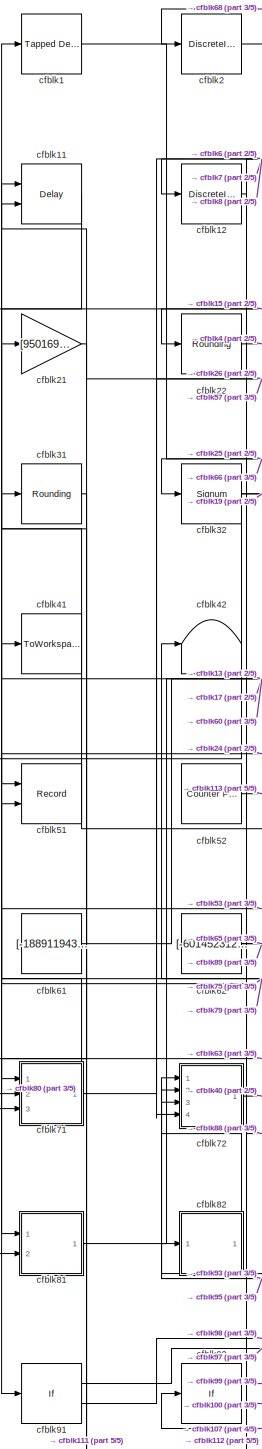
[diagram: root canvas - part 1/5, left side, full height]
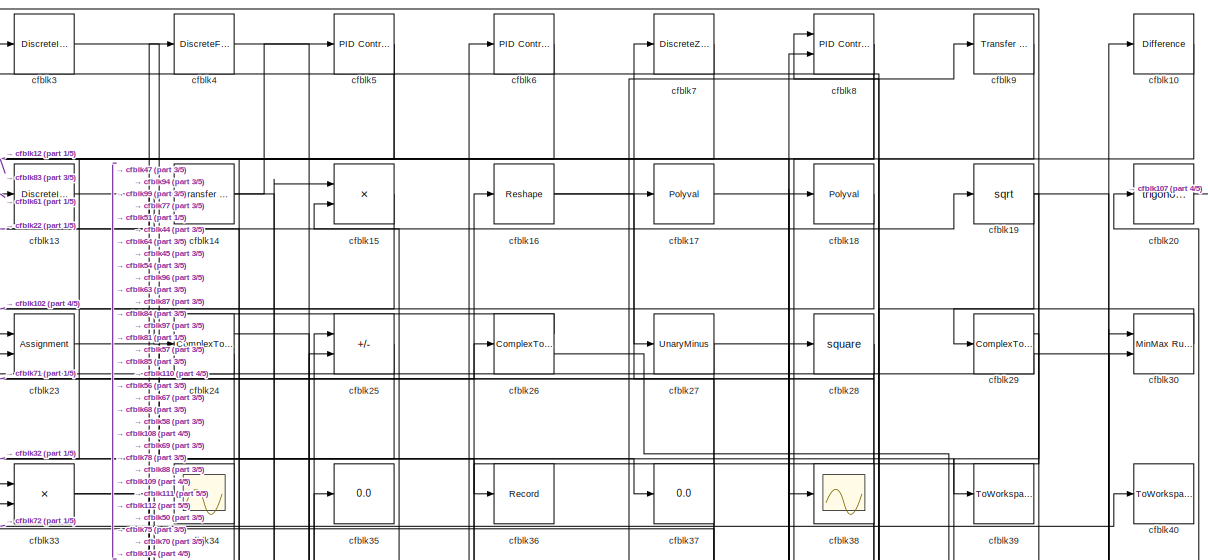
[diagram: root canvas - part 2/5, full width, top band]
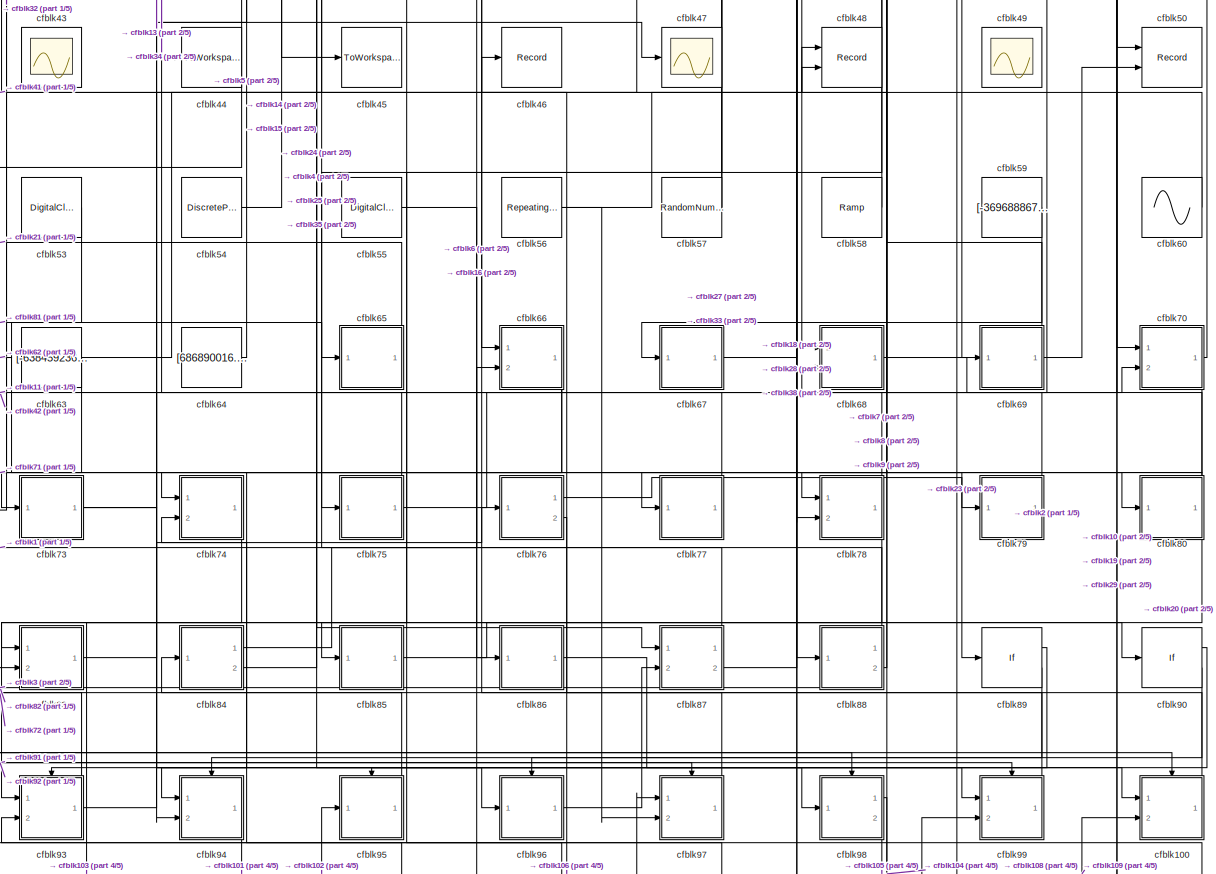
[diagram: root canvas - part 3/5, full width, middle band]
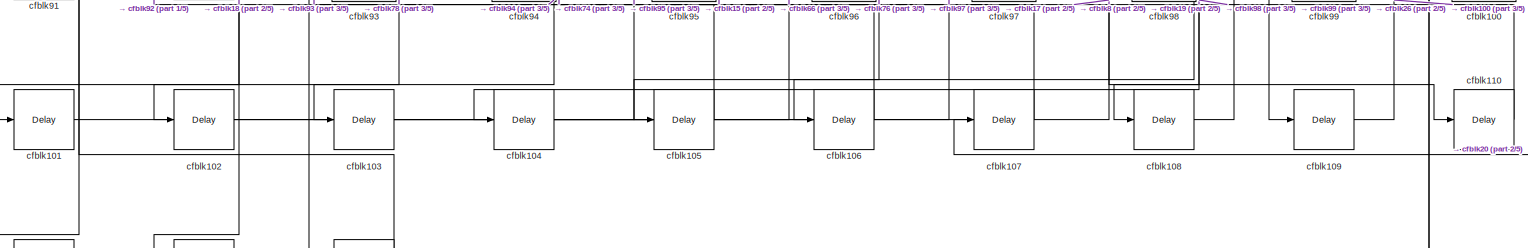
[diagram: root canvas - part 4/5, full width, bottom band]
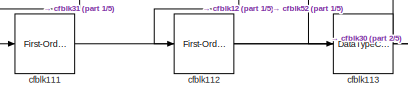
[diagram: root canvas - part 5/5, bottom left region]
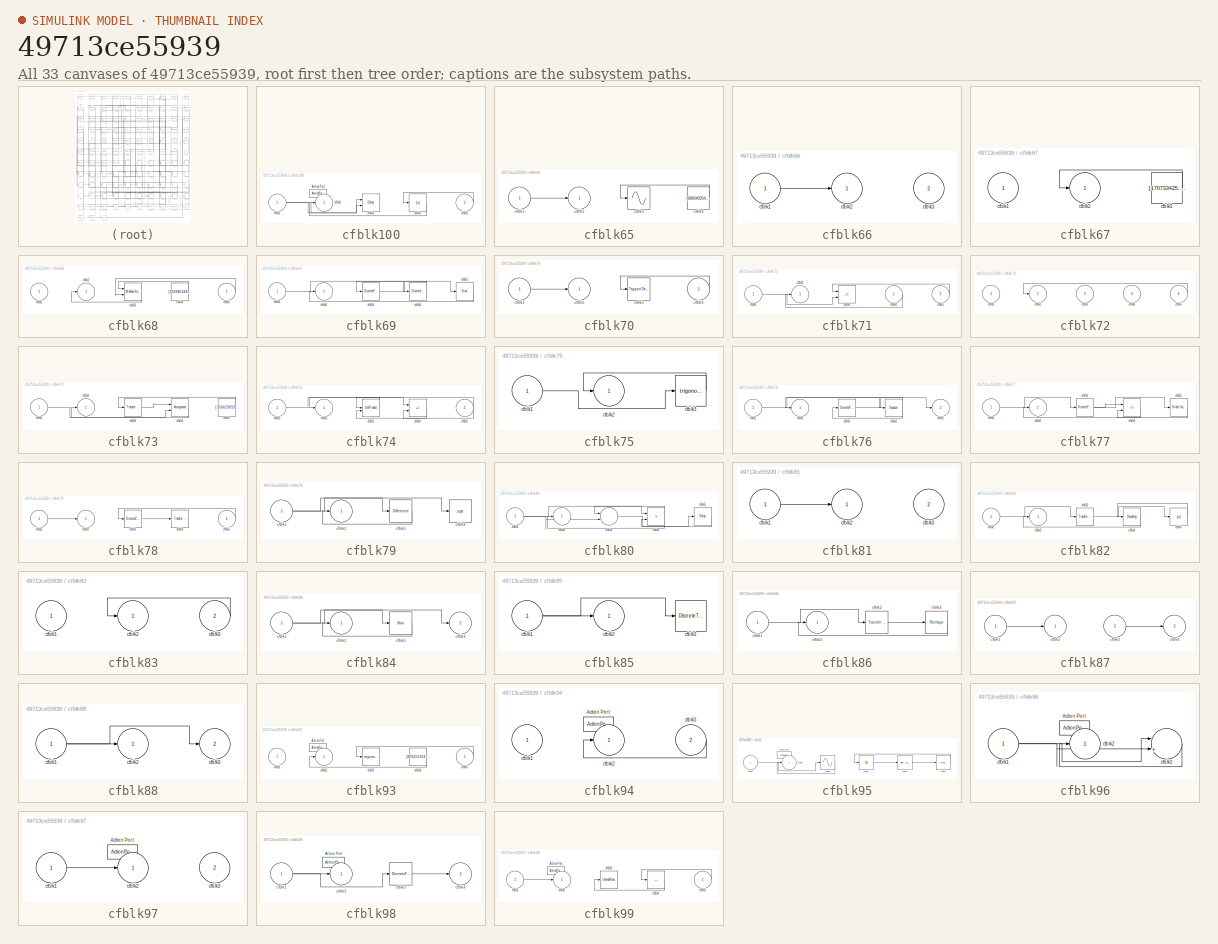
[diagram: thumbnail index - all 33 canvases of the model, root first then tree order]
MODEL slx_49713ce55939
KIND model
CONFIG AbsTol = auto
CONFIG EnableMultiTasking = off
CONFIG FixedStep = auto
CONFIG MaxStep = auto
CONFIG MinStep = auto
CONFIG RelTol = 1e-3
CONFIG SampleTimeConstraint = Unconstrained
CONFIG SolverName = VariableStepAuto
CONFIG StartTime = 0.0
CONFIG StopTime = 10.0
BLOCK [Reference] cfblk1  REF=simulink/Discrete/Tapped Delay
  Ports = [1, 1]
  SourceBlock = simulink/Discrete/Tapped Delay
  SourceProductBaseCode = SL
  SourceType = Tapped Delay Line
BLOCK [Reference] cfblk10  REF=simulink/Discrete/Difference
  Ports = [1, 1]
  SourceBlock = simulink/Discrete/Difference
  SourceProductBaseCode = SL
  SourceType = Difference
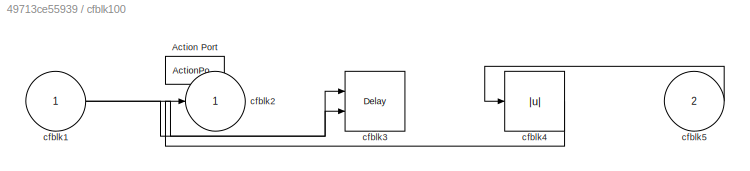
BLOCK [SubSystem] cfblk100
  Ports = [2, 1, 0, 0, 0, 0, 0, 1]
  RequestExecContextInheritance = off
  TreatAsAtomicUnit = on
BLOCK [ActionPort] cfblk100/Action Port
  ActionPortLabel = else
BLOCK [Inport] cfblk100/cfblk1
BLOCK [Outport] cfblk100/cfblk2
BLOCK [Delay] cfblk100/cfblk3
  InputPortMap = u0,e6
  Ports = [2, 1]
  ShowEnablePort = on
BLOCK [Abs] cfblk100/cfblk4
  SaturateOnIntegerOverflow = off
BLOCK [Inport] cfblk100/cfblk5
  Port = 2
BLOCK [Delay] cfblk101
  InputPortMap = u0
  Ports = [1, 1]
  SampleTime = 1
BLOCK [Delay] cfblk102
  InputPortMap = u0
  Ports = [1, 1]
  SampleTime = 1
BLOCK [Delay] cfblk103
  InputPortMap = u0
  Ports = [1, 1]
  SampleTime = 1
BLOCK [Delay] cfblk104
  InputPortMap = u0
  Ports = [1, 1]
  SampleTime = 1
BLOCK [Delay] cfblk105
  InputPortMap = u0
  Ports = [1, 1]
  SampleTime = 1
BLOCK [Delay] cfblk106
  InputPortMap = u0
  Ports = [1, 1]
  SampleTime = 1
BLOCK [Delay] cfblk107
  InputPortMap = u0
  Ports = [1, 1]
  SampleTime = 1
BLOCK [Delay] cfblk108
  InputPortMap = u0
  Ports = [1, 1]
  SampleTime = 1
BLOCK [Delay] cfblk109
  InputPortMap = u0
  Ports = [1, 1]
  SampleTime = 1
BLOCK [Delay] cfblk11
  DelayLengthSource = Input port
  InputPortMap = u0,p1
  Ports = [2, 1]
  SampleTime = 1
BLOCK [Delay] cfblk110
  InputPortMap = u0
  Ports = [1, 1]
  SampleTime = 1
BLOCK [Reference] cfblk111  REF=simulink_need_slupdate/First-Order
Hold
  DisableCoverage = on
  Ports = [1, 1]
  SourceBlock = simulink_need_slupdate/First-Order\nHold
  SourceProductBaseCode = SL
  SourceType = First-Order Hold
BLOCK [Reference] cfblk112  REF=simulink_need_slupdate/First-Order
Hold
  DisableCoverage = on
  Ports = [1, 1]
  SourceBlock = simulink_need_slupdate/First-Order\nHold
  SourceProductBaseCode = SL
  SourceType = First-Order Hold
BLOCK [DataTypeConversion] cfblk113
  RndMeth = Floor
  SaturateOnIntegerOverflow = off
BLOCK [DiscreteIntegrator] cfblk12
  ICPrevOutput = DiscIntNeverNeededParam
  ICPrevScaledInput = DiscIntNeverNeededParam
  InitialConditionSetting = Auto
  Ports = [1, 1]
BLOCK [DiscreteIntegrator] cfblk13
  ICPrevOutput = DiscIntNeverNeededParam
  ICPrevScaledInput = DiscIntNeverNeededParam
  InitialConditionSetting = Auto
  Ports = [1, 1]
BLOCK [Reference] cfblk14  REF=simulink/Discrete/Transfer Fcn
First Order
  Ports = [1, 1]
  SourceBlock = simulink/Discrete/Transfer Fcn\nFirst Order
  SourceProductBaseCode = SL
  SourceType = First Order Transfer Fcn
BLOCK [Product] cfblk15
  Inputs = **
  Ports = [2, 1]
BLOCK [Reshape] cfblk16
  Ports = [1, 1]
BLOCK [Polyval] cfblk17
  Coefs = [ +2.081618890e-019, -1.441693666e-014, +4.719686976e-010, -8.536869453e-006, +1.621573104e-001, -8.087801117e+001 ]
BLOCK [Polyval] cfblk18
  Coefs = [ +2.081618890e-019, -1.441693666e-014, +4.719686976e-010, -8.536869453e-006, +1.621573104e-001, -8.087801117e+001 ]
BLOCK [Sqrt] cfblk19
BLOCK [DiscreteIntegrator] cfblk2
  ICPrevOutput = DiscIntNeverNeededParam
  ICPrevScaledInput = DiscIntNeverNeededParam
  InitialConditionSetting = Auto
  Ports = [1, 1]
BLOCK [Trigonometry] cfblk20
  Ports = [1, 1]
BLOCK [Gain] cfblk21
  Gain = [950169785.692510]
BLOCK [Rounding] cfblk22
BLOCK [Assignment] cfblk23
  DiagnosticForDimensions = Warning
  IndexOptions = Index vector (dialog)
  Indices = 1
  OutputSizes = 1
  Ports = [2, 1]
BLOCK [ComplexToMagnitudeAngle] cfblk24
  Ports = [1, 2]
BLOCK [Sum] cfblk25
  IconShape = rectangular
  Inputs = +-
  Ports = [2, 1]
BLOCK [ComplexToMagnitudeAngle] cfblk26
  Ports = [1, 2]
BLOCK [UnaryMinus] cfblk27
BLOCK [Math] cfblk28
  Operator = square
  Ports = [1, 1]
BLOCK [ComplexToMagnitudeAngle] cfblk29
  Ports = [1, 2]
BLOCK [DiscreteIntegrator] cfblk3
  ICPrevOutput = DiscIntNeverNeededParam
  ICPrevScaledInput = DiscIntNeverNeededParam
  InitialConditionSetting = Auto
  Ports = [1, 1]
BLOCK [Reference] cfblk30  REF=simulink/Math
Operations/MinMax
Running
Resettable
  Ports = [2, 1]
  SourceBlock = simulink/Math\nOperations/MinMax\nRunning\nResettable
  SourceProductBaseCode = SL
  SourceType = MinMax Running Resettable
BLOCK [Rounding] cfblk31
BLOCK [Signum] cfblk32
BLOCK [Product] cfblk33
  Inputs = **
  Ports = [2, 1]
BLOCK [Scope] cfblk34
  Floating = off
  NumInputPorts = 1
  Ports = [1]
BLOCK [Display] cfblk35
  Decimation = 1
  Ports = [1]
BLOCK [Record] cfblk36
  FileSettingsInternal = {"entries":[{"content":{"excelSettings":{"content":{},"type":"Streamout.ExcelSettings"}},"type":"Streamout.FileSettingStorage","uuid":"ec53506d-30ea-4261-b9a0-b75c484f34c6"}],"packageUris":["http://schema.mathworks.com/mf0/streamout_blocks/R2020a"],"version":"1.0"}
  Ports = [1]
  SignalsInternal = {"entries":[{"content":{"signals":[{"content":{"blockPath":["sampleModel167/cfblk36"],"channel":[],"dimensions":[1],"domain":"sampleModel167/cfblk36","lineColor":"#0072bd","plots":[1],"port":1,"sid":[""],"signalID":6249,"signalName":"cfblk29:1"},"type":"RecordBlkView.Signal","uuid":"139c6468-dbd3-450a-91ea-6cefff8656e1"}]},"type":"RecordBlkView.InputSignals","uuid":"052d45fd-bfd9-46ee-adba-506bdda...<+99ch>
  VisualizationBindings = {"sparklinesplugin":{"info":[{"bindingParametersList":[],"subplotID":1}]}}
BLOCK [Display] cfblk37
  Decimation = 1
  Ports = [1]
BLOCK [Scope] cfblk38
  Floating = off
  NumInputPorts = 1
  Ports = [1]
BLOCK [ToWorkspace] cfblk39
  FixptAsFi = on
  MaxDataPoints = inf
  Ports = [1]
  SampleTime = -1
  SaveFormat = Timeseries
  VariableName = jrjdnlb
BLOCK [DiscreteFilter] cfblk4
  InputPortMap = u0
  Ports = [1, 1]
  SampleTime = 1
BLOCK [ToWorkspace] cfblk40
  FixptAsFi = on
  MaxDataPoints = inf
  Ports = [1]
  SampleTime = -1
  SaveFormat = Timeseries
  VariableName = kweqstz
BLOCK [ToWorkspace] cfblk41
  FixptAsFi = on
  MaxDataPoints = inf
  Ports = [1]
  SampleTime = -1
  SaveFormat = Timeseries
  VariableName = vjsuthl
BLOCK [Terminator] cfblk42
BLOCK [Scope] cfblk43
  Floating = on
  NumInputPorts = 1
  Ports = []
BLOCK [ToWorkspace] cfblk44
  FixptAsFi = on
  MaxDataPoints = inf
  Ports = [1]
  SampleTime = -1
  SaveFormat = Timeseries
  VariableName = tsogrfv
BLOCK [ToWorkspace] cfblk45
  FixptAsFi = on
  MaxDataPoints = inf
  Ports = [1]
  SampleTime = -1
  SaveFormat = Timeseries
  VariableName = mblcdwz
BLOCK [Record] cfblk46
  FileSettingsInternal = {"entries":[{"content":{"excelSettings":{"content":{},"type":"Streamout.ExcelSettings"}},"type":"Streamout.FileSettingStorage","uuid":"da6e1204-091f-4c4c-badc-bc2d25b8ce37"}],"packageUris":["http://schema.mathworks.com/mf0/streamout_blocks/R2020a"],"version":"1.0"}
  Ports = [1]
  SignalsInternal = {"entries":[{"content":{"signals":[{"content":{"blockPath":["sampleModel167/cfblk46"],"channel":[],"dimensions":[1],"domain":"sampleModel167/cfblk46","lineColor":"#d95319","plots":[1],"port":1,"sid":[""],"signalID":6253,"signalName":"cfblk100"},"type":"RecordBlkView.Signal","uuid":"8a354596-a8b4-422e-ad70-63d130796eff"}]},"type":"RecordBlkView.InputSignals","uuid":"d4f8df1c-8773-4cbd-9373-b1e680f8...<+98ch>
  VisualizationBindings = {"sparklinesplugin":{"info":[{"bindingParametersList":[],"subplotID":1}]}}
BLOCK [Scope] cfblk47
  Floating = off
  NumInputPorts = 1
  Ports = [1]
BLOCK [Record] cfblk48
  CompatibilityTag = XY
  FileSettingsInternal = {"entries":[{"content":{"excelSettings":{"content":{},"type":"Streamout.ExcelSettings"}},"type":"Streamout.FileSettingStorage","uuid":"2d2570bb-5f7a-4484-a74c-e022182345ca"}],"packageUris":["http://schema.mathworks.com/mf0/streamout_blocks/R2020a"],"version":"1.0"}
  Layout = [1 1]
  Ports = [2]
  SignalsInternal = {"entries":[{"content":{"signals":[{"content":{"blockPath":["sampleModel167/cfblk48"],"channel":[],"dimensions":[1],"domain":"sampleModel167/cfblk48","lineColor":"#a2142f","plots":[1],"port":1,"sid":[""],"signalID":6257,"signalName":"cfblk80"},"type":"RecordBlkView.Signal","uuid":"0f420bdd-d17e-44a9-89a2-4def85ddcdf1"},{"content":{"blockPath":["sampleModel167/cfblk48"],"channel":[],"dimensions":[1...<+383ch>
  VisualizationBindings = {"xyplotplugin":{"info":[{"series":[{"bindingParametersList":[{"parameter":"X-Axis","signalID":6257,"signalName":"cfblk80"},{"parameter":"Y-Axis","signalID":6261,"signalName":"cfblk73"}],"seriesID":53970}],"subplotID":1}]}}
BLOCK [Scope] cfblk49
  Floating = on
  NumInputPorts = 1
  Ports = []
BLOCK [Reference] cfblk5  REF=slpidlib/PID Controller
  Ports = [1, 1]
  SourceBlock = slpidlib/PID Controller
  SourceProductBaseCode = SL
  SourceType = PID 1dof
BLOCK [Record] cfblk50
  CompatibilityTag = XY
  FileSettingsInternal = {"entries":[{"content":{"excelSettings":{"content":{},"type":"Streamout.ExcelSettings"}},"type":"Streamout.FileSettingStorage","uuid":"40a77355-b6b9-4623-865c-1ca23200a22d"}],"packageUris":["http://schema.mathworks.com/mf0/streamout_blocks/R2020a"],"version":"1.0"}
  Layout = [1 1]
  Ports = [2]
  SignalsInternal = {"entries":[{"content":{"signals":[{"content":{"blockPath":["sampleModel167/cfblk50"],"channel":[],"dimensions":[1],"domain":"sampleModel167/cfblk50","lineColor":"#a2142f","plots":[1],"port":1,"sid":[""],"signalID":6265,"signalName":"cfblk29:2"},"type":"RecordBlkView.Signal","uuid":"cc7a997b-e63d-444a-905f-d59d5b2896fd"},{"content":{"blockPath":["sampleModel167/cfblk50"],"channel":[],"dimensions":...<+385ch>
  VisualizationBindings = {"xyplotplugin":{"info":[{"series":[{"bindingParametersList":[{"parameter":"X-Axis","signalID":6265,"signalName":"cfblk29:2"},{"parameter":"Y-Axis","signalID":6269,"signalName":"cfblk69"}],"seriesID":27313}],"subplotID":1}]}}
BLOCK [Record] cfblk51
  CompatibilityTag = XY
  FileSettingsInternal = {"entries":[{"content":{"excelSettings":{"content":{},"type":"Streamout.ExcelSettings"}},"type":"Streamout.FileSettingStorage","uuid":"e3204bcf-3174-4af1-beb2-6810d04cfba5"}],"packageUris":["http://schema.mathworks.com/mf0/streamout_blocks/R2020a"],"version":"1.0"}
  Layout = [1 1]
  Ports = [2]
  SignalsInternal = {"entries":[{"content":{"signals":[{"content":{"blockPath":["sampleModel167/cfblk51"],"channel":[],"dimensions":[1],"domain":"sampleModel167/cfblk51","lineColor":"#a2142f","plots":[1],"port":1,"sid":[""],"signalID":6273,"signalName":"cfblk24:2"},"type":"RecordBlkView.Signal","uuid":"6600f92a-317f-4508-8dc5-cdf654def4ef"},{"content":{"blockPath":["sampleModel167/cfblk51"],"channel":[],"dimensions":...<+385ch>
  VisualizationBindings = {"xyplotplugin":{"info":[{"series":[{"bindingParametersList":[{"parameter":"X-Axis","signalID":6273,"signalName":"cfblk24:2"},{"parameter":"Y-Axis","signalID":6277,"signalName":"cfblk71"}],"seriesID":11353}],"subplotID":1}]}}
BLOCK [Reference] cfblk52  REF=simulink/Sources/Counter
Free-Running
  Ports = [0, 1]
  SourceBlock = simulink/Sources/Counter\nFree-Running
  SourceProductBaseCode = SL
  SourceType = Counter Free-Running
BLOCK [DigitalClock] cfblk53
BLOCK [DiscretePulseGenerator] cfblk54
  Amplitude = [534137876.527184]
  Period = [54976083.843764]
  PhaseDelay = [8.000000]
  Ports = [0, 1]
  PulseType = Time based
  PulseWidth = 5
BLOCK [DigitalClock] cfblk55
BLOCK [Reference] cfblk56  REF=simulink/Sources/Repeating
Sequence
  Ports = [0, 1]
  SourceBlock = simulink/Sources/Repeating\nSequence
  SourceProductBaseCode = SL
  SourceType = Repeating table
BLOCK [RandomNumber] cfblk57
  Mean = [-51850.961878]
  SampleTime = 0.1
  Seed = [432152080.000000]
  Variance = [97939.194317]
BLOCK [Reference] cfblk58  REF=simulink/Sources/Ramp
  Ports = [0, 1]
  SourceBlock = simulink/Sources/Ramp
  SourceProductBaseCode = SL
  SourceType = Ramp
BLOCK [Constant] cfblk59
  SampleTime = 1
  Value = [-369688867.851482]
BLOCK [Reference] cfblk6  REF=slpidlib/PID Controller
  Ports = [1, 1]
  SourceBlock = slpidlib/PID Controller
  SourceProductBaseCode = SL
  SourceType = PID 1dof
BLOCK [Sin] cfblk60
  Amplitude = [-473951708.743377]
  Bias = [-825559147.344328]
  Ports = [0, 1]
  SampleTime = 0
BLOCK [Constant] cfblk61
  SampleTime = 1
  Value = [-188911943.228703]
BLOCK [Constant] cfblk62
  SampleTime = 1
  Value = [-601452312.821979]
BLOCK [Constant] cfblk63
  SampleTime = 1
  Value = [-638459236.016593]
BLOCK [Constant] cfblk64
  SampleTime = 1
  Value = [686890016.162688]
BLOCK [SubSystem] cfblk65
  Ports = [1, 1]
  RequestExecContextInheritance = off
BLOCK [Inport] cfblk65/cfblk1
BLOCK [Outport] cfblk65/cfblk2
BLOCK [Sin] cfblk65/cfblk3
  Ports = [1, 1]
  SampleTime = 0
  TimeSource = Use external signal
BLOCK [Constant] cfblk65/cfblk4
  SampleTime = 1
  Value = [688240254.247042]
BLOCK [SubSystem] cfblk66
  Ports = [2, 1]
  RequestExecContextInheritance = off
BLOCK [Inport] cfblk66/cfblk1
BLOCK [Outport] cfblk66/cfblk2
BLOCK [Inport] cfblk66/cfblk3
  Port = 2
BLOCK [SubSystem] cfblk67
  Ports = [1, 1]
  RequestExecContextInheritance = off
BLOCK [Inport] cfblk67/cfblk1
BLOCK [Outport] cfblk67/cfblk2
BLOCK [Constant] cfblk67/cfblk3
  SampleTime = 1
  Value = [170733425.297575]
BLOCK [SubSystem] cfblk68
  Ports = [2, 1]
  RequestExecContextInheritance = off
BLOCK [Inport] cfblk68/cfblk1
BLOCK [Outport] cfblk68/cfblk2
BLOCK [Reference] cfblk68/cfblk3  REF=simulink/Math
Operations/MinMax
Running
Resettable
  Ports = [2, 1]
  SourceBlock = simulink/Math\nOperations/MinMax\nRunning\nResettable
  SourceProductBaseCode = SL
  SourceType = MinMax Running Resettable
BLOCK [Constant] cfblk68/cfblk4
  SampleTime = 1
  Value = [193960248.301744]
BLOCK [Inport] cfblk68/cfblk5
  Port = 2
BLOCK [SubSystem] cfblk69
  Ports = [1, 1]
  RequestExecContextInheritance = off
BLOCK [Inport] cfblk69/cfblk1
BLOCK [Outport] cfblk69/cfblk2
BLOCK [DiscreteFir] cfblk69/cfblk3
  InputPortMap = u0
  OutputPortMap = o0
  Ports = [1, 1]
  SampleTime = 1
BLOCK [DiscreteIntegrator] cfblk69/cfblk4
  ICPrevOutput = DiscIntNeverNeededParam
  ICPrevScaledInput = DiscIntNeverNeededParam
  InitialConditionSetting = Auto
  Ports = [1, 1]
BLOCK [Bias] cfblk69/cfblk5
  Bias = [667088077.486138]
  SaturateOnIntegerOverflow = off
BLOCK [DiscreteZeroPole] cfblk7
  Gain = 1
  Poles = [0 0.5]
BLOCK [SubSystem] cfblk70
  Ports = [2, 1]
  RequestExecContextInheritance = off
BLOCK [Inport] cfblk70/cfblk1
BLOCK [Outport] cfblk70/cfblk2
BLOCK [Reference] cfblk70/cfblk3  REF=simulink/Discrete/Tapped Delay
  Ports = [1, 1]
  SourceBlock = simulink/Discrete/Tapped Delay
  SourceProductBaseCode = SL
  SourceType = Tapped Delay Line
BLOCK [Inport] cfblk70/cfblk4
  Port = 2
BLOCK [SubSystem] cfblk71
  Ports = [3, 1]
  RequestExecContextInheritance = off
BLOCK [Inport] cfblk71/cfblk1
BLOCK [Outport] cfblk71/cfblk2
BLOCK [Sum] cfblk71/cfblk3
  IconShape = rectangular
  Inputs = +-
  Ports = [2, 1]
BLOCK [Inport] cfblk71/cfblk4
  Port = 2
BLOCK [Inport] cfblk71/cfblk5
  Port = 3
BLOCK [SubSystem] cfblk72
  Ports = [4, 1]
  RequestExecContextInheritance = off
BLOCK [Inport] cfblk72/cfblk1
BLOCK [Outport] cfblk72/cfblk2
BLOCK [Inport] cfblk72/cfblk3
  Port = 2
BLOCK [Inport] cfblk72/cfblk4
  Port = 3
BLOCK [Inport] cfblk72/cfblk5
  Port = 4
BLOCK [SubSystem] cfblk73
  Ports = [1, 1]
  RequestExecContextInheritance = off
BLOCK [Inport] cfblk73/cfblk1
BLOCK [Outport] cfblk73/cfblk2
BLOCK [Reference] cfblk73/cfblk3  REF=simulink/Discrete/Transfer Fcn
First Order
  Ports = [1, 1]
  SourceBlock = simulink/Discrete/Transfer Fcn\nFirst Order
  SourceProductBaseCode = SL
  SourceType = First Order Transfer Fcn
BLOCK [Assignment] cfblk73/cfblk4
  DiagnosticForDimensions = Warning
  IndexOptions = Index vector (dialog)
  Indices = 1
  OutputSizes = 1
  Ports = [2, 1]
BLOCK [Constant] cfblk73/cfblk5
  SampleTime = 1
  Value = [-956619059.504512]
BLOCK [SubSystem] cfblk74
  Ports = [2, 1]
  RequestExecContextInheritance = off
BLOCK [Inport] cfblk74/cfblk1
BLOCK [Outport] cfblk74/cfblk2
BLOCK [DotProduct] cfblk74/cfblk3
  OutDataTypeStr = Inherit: Inherit via internal rule
BLOCK [Sum] cfblk74/cfblk4
  IconShape = rectangular
  Inputs = +-
  Ports = [2, 1]
BLOCK [Inport] cfblk74/cfblk5
  Port = 2
BLOCK [SubSystem] cfblk75
  Ports = [1, 1]
  RequestExecContextInheritance = off
BLOCK [Inport] cfblk75/cfblk1
BLOCK [Outport] cfblk75/cfblk2
BLOCK [Trigonometry] cfblk75/cfblk3
  Ports = [1, 1]
BLOCK [SubSystem] cfblk76
  Ports = [1, 2]
  RequestExecContextInheritance = off
BLOCK [Inport] cfblk76/cfblk1
BLOCK [Outport] cfblk76/cfblk2
BLOCK [DiscreteFir] cfblk76/cfblk3
  InputPortMap = u0
  OutputPortMap = o0
  Ports = [1, 1]
  SampleTime = 1
BLOCK [Squeeze] cfblk76/cfblk4
BLOCK [Outport] cfblk76/cfblk5
  Port = 2
BLOCK [SubSystem] cfblk77
  Ports = [1, 1]
  RequestExecContextInheritance = off
BLOCK [Inport] cfblk77/cfblk1
BLOCK [Outport] cfblk77/cfblk2
BLOCK [DiscreteTransferFcn] cfblk77/cfblk3
  InputPortMap = u0
  Ports = [1, 1]
  SampleTime = 1
BLOCK [Sum] cfblk77/cfblk4
  IconShape = rectangular
  Inputs = -+
  Ports = [2, 1]
BLOCK [Reference] cfblk77/cfblk5  REF=simulink/Math
Operations/Slider
Gain
  Ports = [1, 1]
  SourceBlock = simulink/Math\nOperations/Slider\nGain
  SourceProductBaseCode = SL
  SourceType = Slider Gain
BLOCK [SubSystem] cfblk78
  Ports = [2, 1]
  RequestExecContextInheritance = off
BLOCK [Inport] cfblk78/cfblk1
BLOCK [Outport] cfblk78/cfblk2
BLOCK [DiscreteZeroPole] cfblk78/cfblk3
  Gain = 1
  Poles = [0 0.5]
BLOCK [Reference] cfblk78/cfblk4  REF=simulink/Discrete/Transfer Fcn
Lead or Lag
  Ports = [1, 1]
  SourceBlock = simulink/Discrete/Transfer Fcn\nLead or Lag
  SourceProductBaseCode = SL
  SourceType = Lead or Lag Compensator
BLOCK [Inport] cfblk78/cfblk5
  Port = 2
BLOCK [SubSystem] cfblk79
  Ports = [1, 1]
  RequestExecContextInheritance = off
BLOCK [Inport] cfblk79/cfblk1
BLOCK [Outport] cfblk79/cfblk2
BLOCK [Reference] cfblk79/cfblk3  REF=simulink/Discrete/Difference
  Ports = [1, 1]
  SourceBlock = simulink/Discrete/Difference
  SourceProductBaseCode = SL
  SourceType = Difference
BLOCK [Sqrt] cfblk79/cfblk4
BLOCK [Reference] cfblk8  REF=slpidlib/PID Controller (2DOF)
  Ports = [2, 1]
  SourceBlock = slpidlib/PID Controller (2DOF)
  SourceProductBaseCode = SL
  SourceType = PID 2dof
BLOCK [SubSystem] cfblk80
  Ports = [1, 1]
  RequestExecContextInheritance = off
BLOCK [Inport] cfblk80/cfblk1
BLOCK [Outport] cfblk80/cfblk2
BLOCK [Sum] cfblk80/cfblk3
  Inputs = |++
  Ports = [2, 1]
BLOCK [Product] cfblk80/cfblk4
  Ports = [2, 1]
BLOCK [Delay] cfblk80/cfblk5
  InputPortMap = u0
  Ports = [1, 1]
  SampleTime = 1
BLOCK [SubSystem] cfblk81
  Ports = [2, 1]
  RequestExecContextInheritance = off
BLOCK [Inport] cfblk81/cfblk1
BLOCK [Outport] cfblk81/cfblk2
BLOCK [Inport] cfblk81/cfblk3
  Port = 2
BLOCK [SubSystem] cfblk82
  Ports = [1, 1]
  RequestExecContextInheritance = off
BLOCK [Inport] cfblk82/cfblk1
BLOCK [Outport] cfblk82/cfblk2
BLOCK [Reference] cfblk82/cfblk3  REF=simulink/Discrete/Transfer Fcn
First Order
  Ports = [1, 1]
  SourceBlock = simulink/Discrete/Transfer Fcn\nFirst Order
  SourceProductBaseCode = SL
  SourceType = First Order Transfer Fcn
BLOCK [Rounding] cfblk82/cfblk4
BLOCK [Abs] cfblk82/cfblk5
  SaturateOnIntegerOverflow = off
BLOCK [SubSystem] cfblk83
  Ports = [2, 1]
  RequestExecContextInheritance = off
BLOCK [Inport] cfblk83/cfblk1
BLOCK [Outport] cfblk83/cfblk2
BLOCK [Inport] cfblk83/cfblk3
  Port = 2
BLOCK [SubSystem] cfblk84
  Ports = [1, 2]
  RequestExecContextInheritance = off
BLOCK [Inport] cfblk84/cfblk1
BLOCK [Outport] cfblk84/cfblk2
BLOCK [Bias] cfblk84/cfblk3
  Bias = [-785996035.115216]
  SaturateOnIntegerOverflow = off
BLOCK [Outport] cfblk84/cfblk4
  Port = 2
BLOCK [SubSystem] cfblk85
  Ports = [1, 1]
  RequestExecContextInheritance = off
BLOCK [Inport] cfblk85/cfblk1
BLOCK [Outport] cfblk85/cfblk2
BLOCK [DiscreteTransferFcn] cfblk85/cfblk3
  InputPortMap = u0
  Ports = [1, 1]
  SampleTime = 1
BLOCK [SubSystem] cfblk86
  Ports = [1, 1]
  RequestExecContextInheritance = off
BLOCK [Inport] cfblk86/cfblk1
BLOCK [Outport] cfblk86/cfblk2
BLOCK [Reference] cfblk86/cfblk3  REF=simulink/Discrete/Transfer Fcn
First Order
  Ports = [1, 1]
  SourceBlock = simulink/Discrete/Transfer Fcn\nFirst Order
  SourceProductBaseCode = SL
  SourceType = First Order Transfer Fcn
BLOCK [Reshape] cfblk86/cfblk4
  Ports = [1, 1]
BLOCK [SubSystem] cfblk87
  Ports = [2, 2]
  RequestExecContextInheritance = off
BLOCK [Inport] cfblk87/cfblk1
BLOCK [Outport] cfblk87/cfblk2
BLOCK [Inport] cfblk87/cfblk3
  Port = 2
BLOCK [Outport] cfblk87/cfblk4
  Port = 2
BLOCK [SubSystem] cfblk88
  Ports = [1, 2]
  RequestExecContextInheritance = off
BLOCK [Inport] cfblk88/cfblk1
BLOCK [Outport] cfblk88/cfblk2
BLOCK [Outport] cfblk88/cfblk3
  Port = 2
BLOCK [If] cfblk89
  IfExpression = u1 >= 0
  Ports = [1, 2]
  SampleTime = 1
BLOCK [Reference] cfblk9  REF=simulink/Discrete/Transfer Fcn
Lead or Lag
  Ports = [1, 1]
  SourceBlock = simulink/Discrete/Transfer Fcn\nLead or Lag
  SourceProductBaseCode = SL
  SourceType = Lead or Lag Compensator
BLOCK [If] cfblk90
  IfExpression = u1 >= 0
  Ports = [1, 2]
  SampleTime = 1
BLOCK [If] cfblk91
  IfExpression = u1 >= 0
  Ports = [1, 2]
  SampleTime = 1
BLOCK [If] cfblk92
  IfExpression = u1 >= 0
  Ports = [1, 2]
  SampleTime = 1
BLOCK [SubSystem] cfblk93
  Ports = [2, 1, 0, 0, 0, 0, 0, 1]
  RequestExecContextInheritance = off
  TreatAsAtomicUnit = on
BLOCK [ActionPort] cfblk93/Action Port
  ActionPortLabel = if(u1 >= 0)
BLOCK [Inport] cfblk93/cfblk1
BLOCK [Outport] cfblk93/cfblk2
BLOCK [Trigonometry] cfblk93/cfblk3
  Ports = [1, 1]
BLOCK [Constant] cfblk93/cfblk4
  SampleTime = 1
  Value = [876251364.505267]
BLOCK [Inport] cfblk93/cfblk5
  Port = 2
BLOCK [SubSystem] cfblk94
  Ports = [2, 1, 0, 0, 0, 0, 0, 1]
  RequestExecContextInheritance = off
  TreatAsAtomicUnit = on
BLOCK [ActionPort] cfblk94/Action Port
  ActionPortLabel = else
BLOCK [Inport] cfblk94/cfblk1
BLOCK [Outport] cfblk94/cfblk2
BLOCK [Inport] cfblk94/cfblk3
  Port = 2
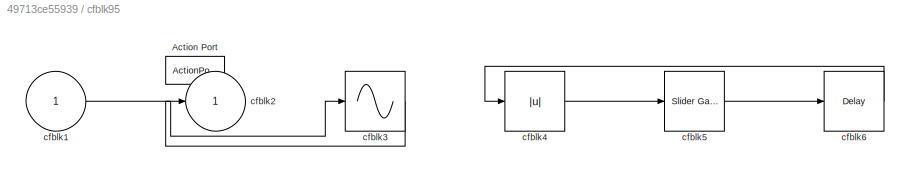
BLOCK [SubSystem] cfblk95
  Ports = [1, 1, 0, 0, 0, 0, 0, 1]
  RequestExecContextInheritance = off
  TreatAsAtomicUnit = on
BLOCK [ActionPort] cfblk95/Action Port
  ActionPortLabel = if(u1 >= 0)
BLOCK [Inport] cfblk95/cfblk1
BLOCK [Outport] cfblk95/cfblk2
BLOCK [Sin] cfblk95/cfblk3
  Ports = [1, 1]
  SampleTime = 0
  TimeSource = Use external signal
BLOCK [Abs] cfblk95/cfblk4
  SaturateOnIntegerOverflow = off
BLOCK [Reference] cfblk95/cfblk5  REF=simulink/Math
Operations/Slider
Gain
  Ports = [1, 1]
  SourceBlock = simulink/Math\nOperations/Slider\nGain
  SourceProductBaseCode = SL
  SourceType = Slider Gain
BLOCK [Delay] cfblk95/cfblk6
  InputPortMap = u0
  Ports = [1, 1]
BLOCK [SubSystem] cfblk96
  Ports = [1, 1, 0, 0, 0, 0, 0, 1]
  RequestExecContextInheritance = off
  TreatAsAtomicUnit = on
BLOCK [ActionPort] cfblk96/Action Port
  ActionPortLabel = else
BLOCK [Inport] cfblk96/cfblk1
BLOCK [Outport] cfblk96/cfblk2
BLOCK [Sum] cfblk96/cfblk3
  Inputs = |++
  Ports = [2, 1]
BLOCK [SubSystem] cfblk97
  Ports = [2, 1, 0, 0, 0, 0, 0, 1]
  RequestExecContextInheritance = off
  TreatAsAtomicUnit = on
BLOCK [ActionPort] cfblk97/Action Port
  ActionPortLabel = if(u1 >= 0)
BLOCK [Inport] cfblk97/cfblk1
BLOCK [Outport] cfblk97/cfblk2
BLOCK [Inport] cfblk97/cfblk3
  Port = 2
BLOCK [SubSystem] cfblk98
  Ports = [1, 2, 0, 0, 0, 0, 0, 1]
  RequestExecContextInheritance = off
  TreatAsAtomicUnit = on
BLOCK [ActionPort] cfblk98/Action Port
  ActionPortLabel = else
BLOCK [Inport] cfblk98/cfblk1
BLOCK [Outport] cfblk98/cfblk2
BLOCK [DiscreteFir] cfblk98/cfblk3
  InputPortMap = u0
  OutputPortMap = o0
  Ports = [1, 1]
BLOCK [Outport] cfblk98/cfblk4
  Port = 2
BLOCK [SubSystem] cfblk99
  Ports = [2, 1, 0, 0, 0, 0, 0, 1]
  RequestExecContextInheritance = off
  TreatAsAtomicUnit = on
BLOCK [ActionPort] cfblk99/Action Port
  ActionPortLabel = if(u1 >= 0)
BLOCK [Inport] cfblk99/cfblk1
BLOCK [Outport] cfblk99/cfblk2
BLOCK [UnaryMinus] cfblk99/cfblk3
BLOCK [Sum] cfblk99/cfblk4
  IconShape = rectangular
  Inputs = +
  Ports = [1, 1]
BLOCK [Inport] cfblk99/cfblk5
  Port = 2
NET cfblk100/cfblk1:1 -> cfblk100/cfblk3:1, cfblk100/cfblk3:2
LINE cfblk100/cfblk4:1 -> cfblk100/cfblk2:1
LINE cfblk100/cfblk5:1 -> cfblk100/cfblk4:1
LINE cfblk100:1 -> cfblk46:1
LINE cfblk101:1 -> cfblk66:2
LINE cfblk102:1 -> cfblk95:1
LINE cfblk103:1 -> cfblk97:1
LINE cfblk104:1 -> cfblk8:2
LINE cfblk105:1 -> cfblk93:2
LINE cfblk106:1 -> cfblk74:2
LINE cfblk107:1 -> cfblk92:1
LINE cfblk108:1 -> cfblk99:2
LINE cfblk109:1 -> cfblk100:2
LINE cfblk10:1 -> cfblk68:1
LINE cfblk110:1 -> cfblk15:2
LINE cfblk111:1 -> cfblk30:1
LINE cfblk112:1 -> cfblk30:2
LINE cfblk113:1 -> cfblk31:1
LINE cfblk11:1 -> cfblk91:1
LINE cfblk12:1 -> cfblk112:1
LINE cfblk13:1 -> cfblk94:2
NET cfblk14:1 -> cfblk45:1, cfblk5:1
LINE cfblk15:1 -> cfblk81:2
NET cfblk16:1 -> cfblk27:1, cfblk9:1
LINE cfblk17:1 -> cfblk110:1
LINE cfblk18:1 -> cfblk102:1
NET cfblk19:1 -> cfblk108:1, cfblk39:1, cfblk70:1
LINE cfblk1:1 -> cfblk66:1
LINE cfblk20:1 -> cfblk107:1
LINE cfblk21:1 -> cfblk71:1
LINE cfblk22:1 -> cfblk4:1
LINE cfblk23:1 -> cfblk69:1
LINE cfblk24:1 -> cfblk87:1
LINE cfblk24:2 -> cfblk51:1
LINE cfblk25:1 -> cfblk32:1
LINE cfblk26:1 -> cfblk24:1
LINE cfblk26:2 -> cfblk109:1
NET cfblk27:1 -> cfblk78:2, cfblk85:1
NET cfblk28:1 -> cfblk23:2, cfblk75:1
LINE cfblk29:1 -> cfblk36:1
NET cfblk29:2 -> cfblk23:1, cfblk50:1
LINE cfblk2:1 -> cfblk88:1
LINE cfblk30:1 -> cfblk29:1
LINE cfblk31:1 -> cfblk111:1
NET cfblk32:1 -> cfblk19:1, cfblk71:2, cfblk80:1
NET cfblk33:1 -> cfblk47:1, cfblk99:1
LINE cfblk3:1 -> cfblk37:1
LINE cfblk4:1 -> cfblk96:1
LINE cfblk52:1 -> cfblk113:1
LINE cfblk53:1 -> cfblk81:1
LINE cfblk54:1 -> cfblk15:1
LINE cfblk55:1 -> cfblk86:1
NET cfblk56:1 -> cfblk28:1, cfblk97:2
NET cfblk57:1 -> cfblk11:2, cfblk33:2
LINE cfblk58:1 -> cfblk7:1
LINE cfblk59:1 -> cfblk67:1
NET cfblk5:1 -> cfblk33:1, cfblk44:1
LINE cfblk60:1 -> cfblk41:1
LINE cfblk61:1 -> cfblk13:1
NET cfblk62:1 -> cfblk65:1, cfblk89:1
NET cfblk63:1 -> cfblk25:1, cfblk71:3
LINE cfblk64:1 -> cfblk14:1
LINE cfblk65/cfblk1:1 -> cfblk65/cfblk2:1
LINE cfblk65/cfblk4:1 -> cfblk65/cfblk3:1
LINE cfblk65:1 -> cfblk21:1
LINE cfblk66/cfblk1:1 -> cfblk66/cfblk2:1
NET cfblk66:1 -> cfblk73:1, cfblk94:1
LINE cfblk67/cfblk3:1 -> cfblk67/cfblk2:1
LINE cfblk67:1 -> cfblk38:1
LINE cfblk68/cfblk3:1 -> cfblk68/cfblk2:1
LINE cfblk68/cfblk4:1 -> cfblk68/cfblk3:1
LINE cfblk68/cfblk5:1 -> cfblk68/cfblk3:2
LINE cfblk68:1 -> cfblk2:1
LINE cfblk69/cfblk1:1 -> cfblk69/cfblk4:1
LINE cfblk69/cfblk3:1 -> cfblk69/cfblk5:1
LINE cfblk69/cfblk4:1 -> cfblk69/cfblk3:1
LINE cfblk69/cfblk5:1 -> cfblk69/cfblk2:1
NET cfblk69:1 -> cfblk50:2, cfblk8:1
LINE cfblk6:1 -> cfblk12:1
LINE cfblk70/cfblk1:1 -> cfblk70/cfblk2:1
LINE cfblk70/cfblk4:1 -> cfblk70/cfblk3:1
NET cfblk70:1 -> cfblk20:1, cfblk74:1
LINE cfblk71/cfblk1:1 -> cfblk71/cfblk3:2
LINE cfblk71/cfblk4:1 -> cfblk71/cfblk2:1
LINE cfblk71/cfblk5:1 -> cfblk71/cfblk3:1
NET cfblk71:1 -> cfblk26:1, cfblk51:2
LINE cfblk72/cfblk5:1 -> cfblk72/cfblk2:1
LINE cfblk72:1 -> cfblk40:1
LINE cfblk73/cfblk1:1 -> cfblk73/cfblk4:2
LINE cfblk73/cfblk3:1 -> cfblk73/cfblk4:1
LINE cfblk73/cfblk4:1 -> cfblk73/cfblk2:1
LINE cfblk73/cfblk5:1 -> cfblk73/cfblk3:1
NET cfblk73:1 -> cfblk100:1, cfblk48:2
LINE cfblk74/cfblk1:1 -> cfblk74/cfblk4:1
LINE cfblk74/cfblk3:1 -> cfblk74/cfblk2:1
LINE cfblk74/cfblk4:1 -> cfblk74/cfblk3:2
NET cfblk74/cfblk5:1 -> cfblk74/cfblk3:1, cfblk74/cfblk4:2
LINE cfblk74:1 -> cfblk93:1
LINE cfblk75/cfblk1:1 -> cfblk75/cfblk3:1
LINE cfblk75/cfblk3:1 -> cfblk75/cfblk2:1
NET cfblk75:1 -> cfblk10:1, cfblk42:1
LINE cfblk76/cfblk1:1 -> cfblk76/cfblk4:1
LINE cfblk76/cfblk3:1 -> cfblk76/cfblk5:1
NET cfblk76/cfblk4:1 -> cfblk76/cfblk2:1, cfblk76/cfblk3:1
LINE cfblk76:1 -> cfblk79:1
LINE cfblk76:2 -> cfblk106:1
LINE cfblk77/cfblk1:1 -> cfblk77/cfblk3:1
NET cfblk77/cfblk3:1 -> cfblk77/cfblk4:1, cfblk77/cfblk5:1
LINE cfblk77/cfblk4:1 -> cfblk77/cfblk2:1
LINE cfblk77/cfblk5:1 -> cfblk77/cfblk4:2
LINE cfblk77:1 -> cfblk34:1
LINE cfblk78/cfblk1:1 -> cfblk78/cfblk2:1
LINE cfblk78/cfblk3:1 -> cfblk78/cfblk4:1
LINE cfblk78/cfblk5:1 -> cfblk78/cfblk3:1
NET cfblk78:1 -> cfblk103:1, cfblk68:2
NET cfblk79/cfblk1:1 -> cfblk79/cfblk3:1, cfblk79/cfblk4:1
LINE cfblk79/cfblk3:1 -> cfblk79/cfblk2:1
LINE cfblk79:1 -> cfblk11:1
LINE cfblk7:1 -> cfblk22:1
NET cfblk80/cfblk1:1 -> cfblk80/cfblk3:2, cfblk80/cfblk4:1
LINE cfblk80/cfblk3:1 -> cfblk80/cfblk5:1
NET cfblk80/cfblk4:1 -> cfblk80/cfblk2:1, cfblk80/cfblk3:1
LINE cfblk80/cfblk5:1 -> cfblk80/cfblk4:2
NET cfblk80:1 -> cfblk48:1, cfblk77:1, cfblk83:1
LINE cfblk81/cfblk1:1 -> cfblk81/cfblk2:1
LINE cfblk81:1 -> cfblk17:1
LINE cfblk82/cfblk1:1 -> cfblk82/cfblk3:1
LINE cfblk82/cfblk3:1 -> cfblk82/cfblk5:1
LINE cfblk82/cfblk4:1 -> cfblk82/cfblk2:1
LINE cfblk82/cfblk5:1 -> cfblk82/cfblk4:1
LINE cfblk82:1 -> cfblk72:3
LINE cfblk83/cfblk3:1 -> cfblk83/cfblk2:1
LINE cfblk83:1 -> cfblk70:2
NET cfblk84/cfblk1:1 -> cfblk84/cfblk3:1, cfblk84/cfblk4:1
LINE cfblk84/cfblk3:1 -> cfblk84/cfblk2:1
LINE cfblk84:1 -> cfblk6:1
LINE cfblk84:2 -> cfblk25:2
NET cfblk85/cfblk1:1 -> cfblk85/cfblk2:1, cfblk85/cfblk3:1
LINE cfblk85:1 -> cfblk90:1
LINE cfblk86/cfblk1:1 -> cfblk86/cfblk3:1
LINE cfblk86/cfblk3:1 -> cfblk86/cfblk4:1
LINE cfblk86/cfblk4:1 -> cfblk86/cfblk2:1
LINE cfblk86:1 -> cfblk98:1
LINE cfblk87/cfblk1:1 -> cfblk87/cfblk2:1
LINE cfblk87/cfblk3:1 -> cfblk87/cfblk4:1
LINE cfblk87:1 -> cfblk35:1
LINE cfblk87:2 -> cfblk18:1
NET cfblk88/cfblk1:1 -> cfblk88/cfblk2:1, cfblk88/cfblk3:1
LINE cfblk88:1 -> cfblk1:1
NET cfblk88:2 -> cfblk3:1, cfblk82:1
LINE cfblk89:1 -> cfblk93:ifaction
LINE cfblk89:2 -> cfblk94:ifaction
NET cfblk8:1 -> cfblk72:4, cfblk83:2
LINE cfblk90:1 -> cfblk95:ifaction
LINE cfblk90:2 -> cfblk96:ifaction
LINE cfblk91:1 -> cfblk97:ifaction
LINE cfblk91:2 -> cfblk98:ifaction
LINE cfblk92:1 -> cfblk99:ifaction
LINE cfblk92:2 -> cfblk100:ifaction
LINE cfblk93/cfblk4:1 -> cfblk93/cfblk2:1
LINE cfblk93/cfblk5:1 -> cfblk93/cfblk3:1
NET cfblk93:1 -> cfblk72:1, cfblk76:1
LINE cfblk94/cfblk3:1 -> cfblk94/cfblk2:1
LINE cfblk94:1 -> cfblk101:1
LINE cfblk95/cfblk1:1 -> cfblk95/cfblk3:1
LINE cfblk95/cfblk3:1 -> cfblk95/cfblk2:1
LINE cfblk95/cfblk4:1 -> cfblk95/cfblk5:1
LINE cfblk95/cfblk5:1 -> cfblk95/cfblk6:1
LINE cfblk95/cfblk6:1 -> cfblk95/cfblk4:1
LINE cfblk95:1 -> cfblk72:2
NET cfblk96/cfblk1:1 -> cfblk96/cfblk3:1, cfblk96/cfblk3:2
LINE cfblk96/cfblk3:1 -> cfblk96/cfblk2:1
LINE cfblk96:1 -> cfblk87:2
LINE cfblk97/cfblk1:1 -> cfblk97/cfblk2:1
LINE cfblk97:1 -> cfblk16:1
NET cfblk98/cfblk1:1 -> cfblk98/cfblk2:1, cfblk98/cfblk3:1
LINE cfblk98/cfblk3:1 -> cfblk98/cfblk4:1
LINE cfblk98:1 -> cfblk104:1
LINE cfblk98:2 -> cfblk105:1
LINE cfblk99/cfblk1:1 -> cfblk99/cfblk2:1
LINE cfblk99/cfblk4:1 -> cfblk99/cfblk3:1
LINE cfblk99/cfblk5:1 -> cfblk99/cfblk4:1
LINE cfblk99:1 -> cfblk84:1
LINE cfblk9:1 -> cfblk78:1
note: NET lines group one-source signal fan-out (src -> all destinations, sorted); 1:1 wires keep LINE
